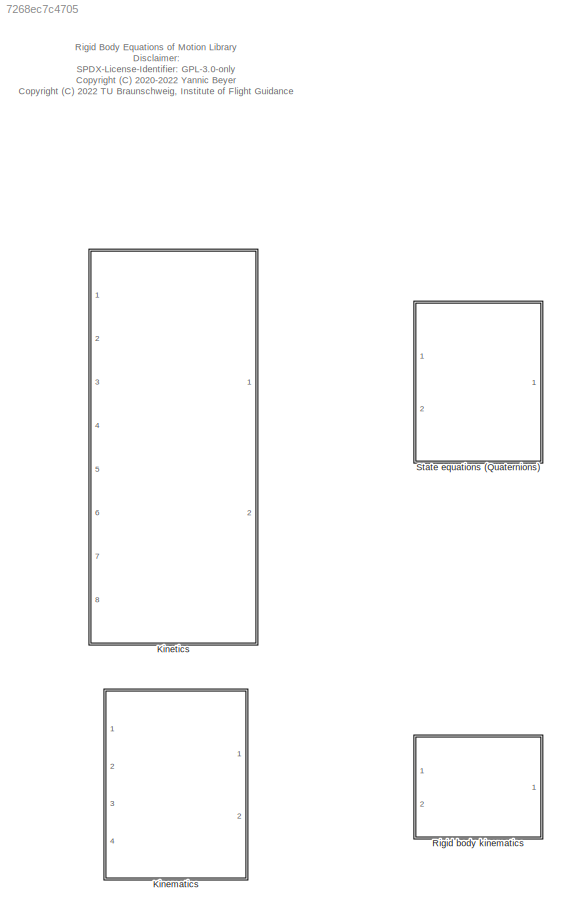
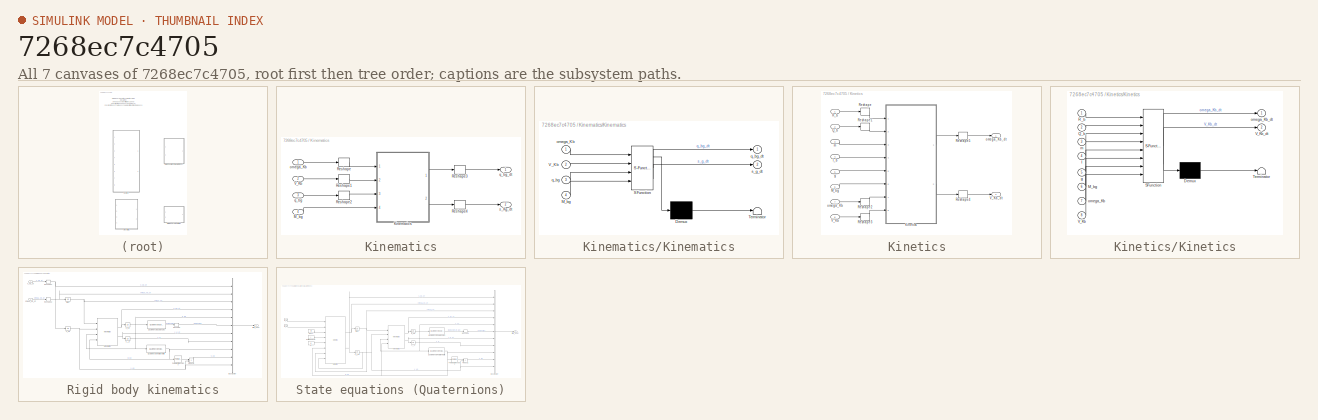
[diagram: thumbnail index - all 7 canvases of the model, root first then tree order]
MODEL slx_7268ec7c4705
KIND library
CONFIG AbsTol = auto
CONFIG EnableMultiTasking = off
CONFIG FixedStep = auto
CONFIG MaxStep = auto
CONFIG MinStep = auto
CONFIG RelTol = 1e-3
CONFIG SampleTimeConstraint = Unconstrained
CONFIG Solver = VariableStepAuto
CONFIG SolverName = VariableStepAuto
CONFIG StartTime = 0.0
CONFIG StopTime = 10.0
BLOCK [SubSystem] Kinematics
  Ports = [4, 2]
  RequestExecContextInheritance = off
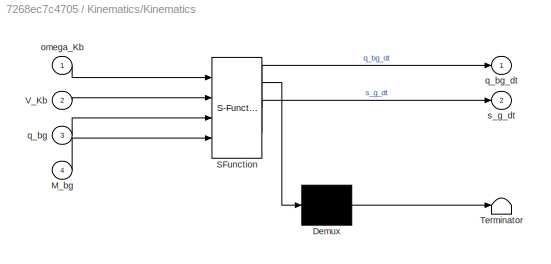
BLOCK [SubSystem] Kinematics/Kinematics
  ErrorFcn = Stateflow.Translate.translate
  PermitHierarchicalResolution = ExplicitOnly
  Ports = [4, 2]
  RequestExecContextInheritance = off
  SFBlockType = MATLAB Function
  TreatAsAtomicUnit = on
BLOCK [Demux] Kinematics/Kinematics/ Demux 
  Outputs = 1
  Ports = [1, 1]
BLOCK [S-Function] Kinematics/Kinematics/ SFunction 
  EnableBusSupport = off
  FunctionName = sf_sfun
  PortCounts = [4 3]
  Ports = [4, 3]
  SFcnIsStateOwnerBlock = off
  SFunctionDeploymentMode = off
  Tag = Stateflow S-Function rigidBody_lib 9
BLOCK [Terminator] Kinematics/Kinematics/ Terminator 
BLOCK [Inport] Kinematics/Kinematics/M_bg
  IconDisplay = Port number
  Port = 4
BLOCK [Inport] Kinematics/Kinematics/V_Kb
  IconDisplay = Port number
  Port = 2
BLOCK [Inport] Kinematics/Kinematics/omega_Kb
  IconDisplay = Port number
BLOCK [Inport] Kinematics/Kinematics/q_bg
  IconDisplay = Port number
  Port = 3
BLOCK [Outport] Kinematics/Kinematics/q_bg_dt
  IconDisplay = Port number
BLOCK [Outport] Kinematics/Kinematics/s_g_dt
  IconDisplay = Port number
  Port = 2
BLOCK [Inport] Kinematics/M_bg
  IconDisplay = Port number
  Port = 4
BLOCK [Reshape] Kinematics/Reshape
  OutputDimensionality = Column vector (2-D)
  Ports = [1, 1]
BLOCK [Reshape] Kinematics/Reshape1
  OutputDimensionality = Column vector (2-D)
  Ports = [1, 1]
BLOCK [Reshape] Kinematics/Reshape2
  OutputDimensionality = Column vector (2-D)
  Ports = [1, 1]
BLOCK [Reshape] Kinematics/Reshape3
  OutputDimensionality = Column vector (2-D)
  Ports = [1, 1]
BLOCK [Reshape] Kinematics/Reshape4
  OutputDimensionality = Column vector (2-D)
  Ports = [1, 1]
BLOCK [Inport] Kinematics/V_Kb
  IconDisplay = Port number
  Port = 2
BLOCK [Inport] Kinematics/omega_Kb
  IconDisplay = Port number
BLOCK [Inport] Kinematics/q_bg
  IconDisplay = Port number
  Port = 3
BLOCK [Outport] Kinematics/q_bg_dt
  IconDisplay = Port number
BLOCK [Outport] Kinematics/s_Kg_dt
  IconDisplay = Port number
  Port = 2
BLOCK [SubSystem] Kinetics
  Ports = [8, 2]
  RequestExecContextInheritance = off
BLOCK [Inport] Kinetics/I_b
  IconDisplay = Port number
  Port = 4
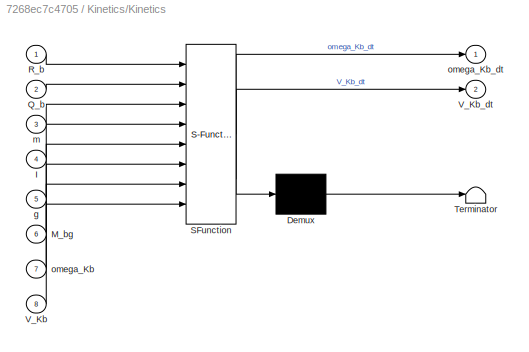
BLOCK [SubSystem] Kinetics/Kinetics
  ErrorFcn = Stateflow.Translate.translate
  PermitHierarchicalResolution = ExplicitOnly
  Ports = [8, 2]
  RequestExecContextInheritance = off
  SFBlockType = MATLAB Function
  TreatAsAtomicUnit = on
BLOCK [Demux] Kinetics/Kinetics/ Demux 
  Outputs = 1
  Ports = [1, 1]
BLOCK [S-Function] Kinetics/Kinetics/ SFunction 
  EnableBusSupport = off
  FunctionName = sf_sfun
  PortCounts = [8 3]
  Ports = [8, 3]
  SFcnIsStateOwnerBlock = off
  SFunctionDeploymentMode = off
  Tag = Stateflow S-Function rigidBody_lib 8
BLOCK [Terminator] Kinetics/Kinetics/ Terminator 
BLOCK [Inport] Kinetics/Kinetics/I
  IconDisplay = Port number
  Port = 4
BLOCK [Inport] Kinetics/Kinetics/M_bg
  IconDisplay = Port number
  Port = 6
BLOCK [Inport] Kinetics/Kinetics/Q_b
  IconDisplay = Port number
  Port = 2
BLOCK [Inport] Kinetics/Kinetics/R_b
  IconDisplay = Port number
BLOCK [Inport] Kinetics/Kinetics/V_Kb
  IconDisplay = Port number
  Port = 8
BLOCK [Outport] Kinetics/Kinetics/V_Kb_dt
  IconDisplay = Port number
  Port = 2
BLOCK [Inport] Kinetics/Kinetics/g
  IconDisplay = Port number
  Port = 5
BLOCK [Inport] Kinetics/Kinetics/m
  IconDisplay = Port number
  Port = 3
BLOCK [Inport] Kinetics/Kinetics/omega_Kb
  IconDisplay = Port number
  Port = 7
BLOCK [Outport] Kinetics/Kinetics/omega_Kb_dt
  IconDisplay = Port number
BLOCK [Inport] Kinetics/M_bg
  IconDisplay = Port number
  Port = 6
BLOCK [Inport] Kinetics/Q_b
  IconDisplay = Port number
  Port = 2
BLOCK [Inport] Kinetics/R_b
  IconDisplay = Port number
BLOCK [Reshape] Kinetics/Reshape
  OutputDimensionality = Column vector (2-D)
  Ports = [1, 1]
BLOCK [Reshape] Kinetics/Reshape1
  OutputDimensionality = Column vector (2-D)
  Ports = [1, 1]
BLOCK [Reshape] Kinetics/Reshape2
  OutputDimensionality = Column vector (2-D)
  Ports = [1, 1]
BLOCK [Reshape] Kinetics/Reshape3
  OutputDimensionality = Column vector (2-D)
  Ports = [1, 1]
BLOCK [Reshape] Kinetics/Reshape4
  OutputDimensionality = Column vector (2-D)
  Ports = [1, 1]
BLOCK [Reshape] Kinetics/Reshape5
  OutputDimensionality = Column vector (2-D)
  Ports = [1, 1]
BLOCK [Inport] Kinetics/V_Kb
  IconDisplay = Port number
  Port = 8
BLOCK [Outport] Kinetics/V_Kb_dt
  IconDisplay = Port number
  Port = 2
BLOCK [Inport] Kinetics/g
  IconDisplay = Port number
  Port = 5
BLOCK [Inport] Kinetics/m
  IconDisplay = Port number
  Port = 3
BLOCK [Inport] Kinetics/omega_Kb
  IconDisplay = Port number
  Port = 7
BLOCK [Outport] Kinetics/omega_Kb_dt
  IconDisplay = Port number
BLOCK [SubSystem] Rigid body kinematics
  Ports = [2, 1]
  RequestExecContextInheritance = off
BLOCK [BusCreator] Rigid body kinematics/Bus Creator
  DisplayOption = bar
  InheritFromInputs = on
  Inputs = 11
  Ports = [11, 1]
BLOCK [Reference] Rigid body kinematics/Kinematics  REF=$bdroot/Kinematics
  Ports = [4, 2]
  SourceBlock = $bdroot/Kinematics
BLOCK [PermuteDimensions] Rigid body kinematics/Permute Dimensions
BLOCK [Product] Rigid body kinematics/Product1
  InputSameDT = off
  Multiplication = Matrix(*)
  OutDataTypeStr = Inherit: Inherit via internal rule
  Ports = [2, 1]
  RndMeth = Floor
  SaturateOnIntegerOverflow = off
BLOCK [Reference] Rigid body kinematics/Quaternions to Euler angles  REF=axes_transformation_lib/Quaternions to Euler angles  (lib defined in slx_69e2413c78c0)
  Ports = [1, 1]
  SourceBlock = axes_transformation_lib/Quaternions to Euler angles
  SourceProductName = LADAC
  SourceType = SubSystem
BLOCK [Reference] Rigid body kinematics/Quaternions to Rotation Matrix  REF=axes_transformation_lib/Quaternions to Rotation Matrix  (lib defined in slx_69e2413c78c0)
  Ports = [1, 1]
  SourceBlock = axes_transformation_lib/Quaternions to Rotation Matrix
  SourceProductName = LADAC
  SourceType = SubSystem
BLOCK [Reshape] Rigid body kinematics/Reshape
  OutputDimensionality = Column vector (2-D)
  Ports = [1, 1]
BLOCK [Reshape] Rigid body kinematics/Reshape1
  OutputDimensionality = Column vector (2-D)
  Ports = [1, 1]
BLOCK [Reshape] Rigid body kinematics/Reshape2
  OutputDimensionality = Column vector (2-D)
  Ports = [1, 1]
BLOCK [Integrator] Rigid body kinematics/V_Kb
  ContinuousStateAttributes = 'velocity'
  InitialCondition = V_Kb_0
  Ports = [1, 1]
BLOCK [Inport] Rigid body kinematics/V_Kb_dt
  IconDisplay = Port number
BLOCK [Inport] Rigid body kinematics/omega_Kb_dt
  IconDisplay = Port number
  Port = 2
BLOCK [Integrator] Rigid body kinematics/q_bg
  ContinuousStateAttributes = 'quaternion'
  InitialCondition = q_bg_0
  LowerSaturationLimit = [-inf;-inf;-inf]
  Ports = [1, 1]
  UpperSaturationLimit = [inf;inf;-quad.z_s]
BLOCK [Integrator] Rigid body kinematics/rates
  ContinuousStateAttributes = 'rates'
  InitialCondition = omega_Kb_0
  Ports = [1, 1]
BLOCK [Outport] Rigid body kinematics/rigid_body
  IconDisplay = Port number
BLOCK [Integrator] Rigid body kinematics/s__g
  ContinuousStateAttributes = 'position'
  InitialCondition = s_g_0
  LowerSaturationLimit = [-inf;-inf;-inf]
  Ports = [1, 1]
  UpperSaturationLimit = [inf;inf;-quad.z_s]
BLOCK [SubSystem] State equations (Quaternions)
  Ports = [2, 1]
  RequestExecContextInheritance = off
BLOCK [BusCreator] State equations (Quaternions)/Bus Creator
  DisplayOption = bar
  InheritFromInputs = on
  Inputs = 11
  Ports = [11, 1]
BLOCK [Reference] State equations (Quaternions)/Kinematics  REF=$bdroot/Kinematics
  Ports = [4, 2]
  SourceBlock = $bdroot/Kinematics
BLOCK [Reference] State equations (Quaternions)/Kinetics  REF=$bdroot/Kinetics
  Ports = [8, 2]
  SourceBlock = $bdroot/Kinetics
BLOCK [PermuteDimensions] State equations (Quaternions)/Permute Dimensions
BLOCK [Product] State equations (Quaternions)/Product1
  InputSameDT = off
  Multiplication = Matrix(*)
  OutDataTypeStr = Inherit: Inherit via internal rule
  Ports = [2, 1]
  RndMeth = Floor
  SaturateOnIntegerOverflow = off
BLOCK [Inport] State equations (Quaternions)/Q_b
  IconDisplay = Port number
  Port = 2
  PortDimensions = 3
BLOCK [Reference] State equations (Quaternions)/Quaternions to Euler angles  REF=axes_transformation_lib/Quaternions to Euler angles  (lib defined in slx_69e2413c78c0)
  Ports = [1, 1]
  SourceBlock = axes_transformation_lib/Quaternions to Euler angles
  SourceProductName = LADAC
  SourceType = SubSystem
BLOCK [Reference] State equations (Quaternions)/Quaternions to Rotation Matrix  REF=axes_transformation_lib/Quaternions to Rotation Matrix  (lib defined in slx_69e2413c78c0)
  Ports = [1, 1]
  SourceBlock = axes_transformation_lib/Quaternions to Rotation Matrix
  SourceProductName = LADAC
  SourceType = SubSystem
BLOCK [Inport] State equations (Quaternions)/R_b
  IconDisplay = Port number
  PortDimensions = 3
BLOCK [Reshape] State equations (Quaternions)/Reshape
  OutputDimensionality = Column vector (2-D)
  Ports = [1, 1]
BLOCK [Integrator] State equations (Quaternions)/V__Kb
  ContinuousStateAttributes = 'velocity'
  InitialCondition = V_Kb_0
  Ports = [1, 1]
BLOCK [Constant] State equations (Quaternions)/g
  Value = g
BLOCK [Constant] State equations (Quaternions)/inertia moments
  Value = I
BLOCK [Constant] State equations (Quaternions)/mass
  Value = m
BLOCK [Integrator] State equations (Quaternions)/q_bg
  ContinuousStateAttributes = 'quaternion'
  InitialCondition = q_bg_0
  LowerSaturationLimit = [-inf;-inf;-inf]
  Ports = [1, 1]
  UpperSaturationLimit = [inf;inf;-quad.z_s]
BLOCK [Integrator] State equations (Quaternions)/rates
  ContinuousStateAttributes = 'rates'
  InitialCondition = omega_Kb_0
  Ports = [1, 1]
BLOCK [Outport] State equations (Quaternions)/rigid_body
  IconDisplay = Port number
BLOCK [Integrator] State equations (Quaternions)/s__g
  ContinuousStateAttributes = 'position'
  InitialCondition = s_g_0
  LowerSaturationLimit = [-inf;-inf;-inf]
  Ports = [1, 1]
  UpperSaturationLimit = [inf;inf;-quad.z_s]
ANNOTATION (root): Rigid Body Equations of Motion Library Disclaimer: SPDX-License-Identifier: GPL-3.0-only <copyright redacted>
LINE Kinematics/Kinematics:1 -> Kinematics/Reshape3:1
LINE Kinematics/Kinematics:2 -> Kinematics/Reshape4:1
LINE Kinematics/M_bg:1 -> Kinematics/Kinematics:4
LINE Kinematics/Reshape1:1 -> Kinematics/Kinematics:2
LINE Kinematics/Reshape2:1 -> Kinematics/Kinematics:3
LINE Kinematics/Reshape3:1 -> Kinematics/q_bg_dt:1
LINE Kinematics/Reshape4:1 -> Kinematics/s_Kg_dt:1
LINE Kinematics/Reshape:1 -> Kinematics/Kinematics:1
LINE Kinematics/V_Kb:1 -> Kinematics/Reshape1:1
LINE Kinematics/omega_Kb:1 -> Kinematics/Reshape:1
LINE Kinematics/q_bg:1 -> Kinematics/Reshape2:1
LINE Kinetics/I_b:1 -> Kinetics/Kinetics:4
LINE Kinetics/Kinetics:1 -> Kinetics/Reshape5:1
LINE Kinetics/Kinetics:2 -> Kinetics/Reshape4:1
LINE Kinetics/M_bg:1 -> Kinetics/Kinetics:6
LINE Kinetics/Q_b:1 -> Kinetics/Reshape1:1
LINE Kinetics/R_b:1 -> Kinetics/Reshape:1
LINE Kinetics/Reshape1:1 -> Kinetics/Kinetics:2
LINE Kinetics/Reshape2:1 -> Kinetics/Kinetics:7
LINE Kinetics/Reshape3:1 -> Kinetics/Kinetics:8
LINE Kinetics/Reshape4:1 -> Kinetics/V_Kb_dt:1
LINE Kinetics/Reshape5:1 -> Kinetics/omega_Kb_dt:1
LINE Kinetics/Reshape:1 -> Kinetics/Kinetics:1
LINE Kinetics/V_Kb:1 -> Kinetics/Reshape3:1
LINE Kinetics/g:1 -> Kinetics/Kinetics:5
LINE Kinetics/m:1 -> Kinetics/Kinetics:3
LINE Kinetics/omega_Kb:1 -> Kinetics/Reshape2:1
LINE Rigid body kinematics/Bus Creator:1 -> Rigid body kinematics/rigid_body:1
NET Rigid body kinematics/Kinematics:1 -> Rigid body kinematics/Bus Creator:4, Rigid body kinematics/q_bg:1
NET Rigid body kinematics/Kinematics:2 -> Rigid body kinematics/Bus Creator:7, Rigid body kinematics/s__g:1
LINE Rigid body kinematics/Permute Dimensions:1 -> Rigid body kinematics/Product1:1
LINE Rigid body kinematics/Product1:1 -> Rigid body kinematics/Bus Creator:10
LINE Rigid body kinematics/Quaternions to Euler angles:1 -> Rigid body kinematics/Reshape:1
NET Rigid body kinematics/Quaternions to Rotation Matrix:1 -> Rigid body kinematics/Bus Creator:9, Rigid body kinematics/Kinematics:4, Rigid body kinematics/Permute Dimensions:1
NET Rigid body kinematics/Reshape1:1 -> Rigid body kinematics/Bus Creator:1, Rigid body kinematics/V_Kb:1
NET Rigid body kinematics/Reshape2:1 -> Rigid body kinematics/Bus Creator:2, Rigid body kinematics/rates:1
LINE Rigid body kinematics/Reshape:1 -> Rigid body kinematics/Bus Creator:6
NET Rigid body kinematics/V_Kb:1 -> Rigid body kinematics/Bus Creator:11, Rigid body kinematics/Kinematics:2, Rigid body kinematics/Product1:2
LINE Rigid body kinematics/V_Kb_dt:1 -> Rigid body kinematics/Reshape1:1
LINE Rigid body kinematics/omega_Kb_dt:1 -> Rigid body kinematics/Reshape2:1
NET Rigid body kinematics/q_bg:1 -> Rigid body kinematics/Bus Creator:5, Rigid body kinematics/Kinematics:3, Rigid body kinematics/Quaternions to Euler angles:1, Rigid body kinematics/Quaternions to Rotation Matrix:1
NET Rigid body kinematics/rates:1 -> Rigid body kinematics/Bus Creator:3, Rigid body kinematics/Kinematics:1
LINE Rigid body kinematics/s__g:1 -> Rigid body kinematics/Bus Creator:8
note: NET lines group one-source signal fan-out (src -> all destinations, sorted); 1:1 wires keep LINE
CHART Kinetics/Kinetics states=1 transitions=1
  STATE_LABEL 'eML_blk_kernel()'
  STATE_LABEL 'SCRIPT:\nfunction [omega_Kb_dt, V_Kb_dt] = ...\n    fcn( R_b, Q_b, m, I, g, M_bg, omega_Kb, V_Kb )%#codegen\n[omega_Kb_dt, V_Kb_dt] = ...\n    rigidBodyKinetics( R_b, Q_b, m, I, g, M_bg, omega_Kb, V_Kb );'
CHART Kinematics/Kinematics states=1 transitions=1
  STATE_LABEL 'eML_blk_kernel()'
  STATE_LABEL 'SCRIPT:\nfunction [q_bg_dt, s_g_dt] = ...\n    fcn( omega_Kb, V_Kb, q_bg, M_bg )%#codegen\n[q_bg_dt, s_g_dt] = ...\n    rigidBodyKinematicsQuat( omega_Kb, V_Kb, q_bg, M_bg );'
